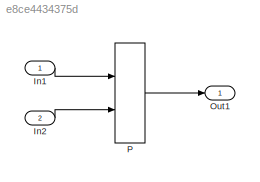
MODEL slx_e8ce4434375d
KIND model
CONFIG AbsTol = auto
CONFIG EnableMultiTasking = off
CONFIG FixedStep = auto
CONFIG MaxStep = auto
CONFIG MinStep = auto
CONFIG RelTol = 1e-3
CONFIG SampleTimeConstraint = Unconstrained
CONFIG Solver = FixedStepDiscrete
CONFIG SolverName = FixedStepDiscrete
CONFIG StartTime = 0.0
CONFIG StopTime = 10.0
BLOCK [Inport] In1
  IconDisplay = Port number
  OutDataTypeStr = single
  OutMax = 127
  OutMin = 0
  PortDimensions = 1
BLOCK [Inport] In2
  IconDisplay = Port number
  OutDataTypeStr = single
  OutMax = 127
  OutMin = 0
  Port = 2
BLOCK [Outport] Out1
  IconDisplay = Port number
BLOCK [Lookup_n-D] P
  BreakpointsForDimension1 = [32.0054017236717;54.6771986517925;90.6267129069121]
  BreakpointsForDimension1DataTypeStr = double
  BreakpointsForDimension2 = [9.40625075045687;13.7348077585759;50.8137088814774;58.6966354011671;76.101758291828]
  BreakpointsForDimension2DataTypeStr = double
  BreakpointsForDimension3 = [5, 7]
  ExtrapMethod = Clip
  InternalRulePriority = Speed
  InterpMethod = Flat
  OutDataTypeStr = uint16
  Ports = [2, 1]
  RndMeth = Ceiling
  SaturateOnIntegerOverflow = on
  Table = [33.7591358017343 99.1066052463153 29.7984514013586 2.25893293328119 22.7395641024978;51.2909070185129 90.2182722570157 54.2583992703143 71.1423944948719 99.7185700821653;34.0650283579646 96.2177528914965 19.6491911577946 50.6392863069004 39.3233403151765]
  UseLastTableValue = on
LINE In1:1 -> P:1
LINE In2:1 -> P:2
LINE P:1 -> Out1:1
